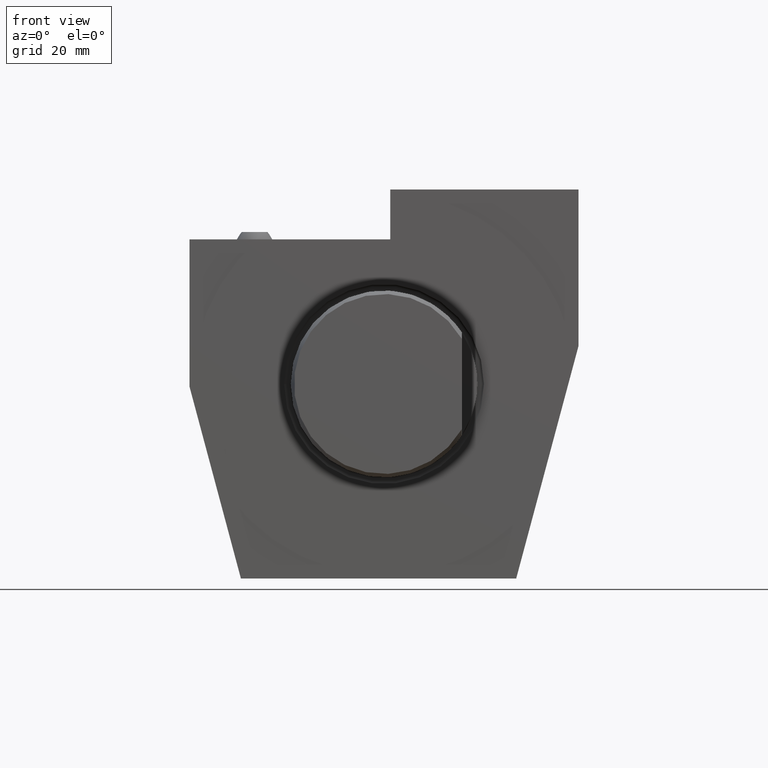
[diagram: clean part render]
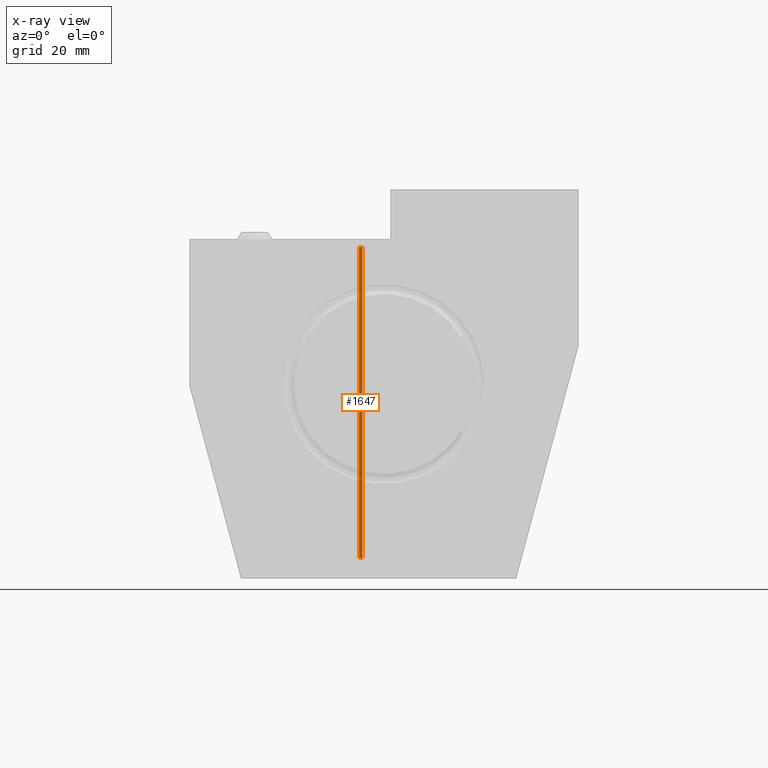
[diagram: x-ray — body ghosted, one internal face saturated and labeled with its STEP entity id]
A machine part, front view, then the same camera in x-ray: the body is ghosted and one INTERNAL B-rep face — a face not visible from any outside direction — is saturated and labeled: STEP entity #1647.
In plain terms, the highlighted planar face has unit normal (0.7071, 0.7071, -0).
Its self-contained STEP definition (entity closure, byte-faithful):
#1282 = VECTOR ( 'NONE', #7830, 1000.000000000000000 ) ;
#1372 = AXIS2_PLACEMENT_3D ( 'NONE', #7530, #2742, #9182 ) ;
#1597 = CARTESIAN_POINT ( 'NONE',  ( -8.000000000000003553, 36.99999999999999289, -6.000000000000012434 ) ) ;
#1647 = ADVANCED_FACE ( 'Defeature completata1_22', ( #5789 ), #12064, .F. ) ;
#1803 = EDGE_CURVE ( 'NONE', #5805, #5525, #19033, .T. ) ;
#2255 = CARTESIAN_POINT ( 'NONE',  ( -8.000000000000003553, 36.99999999999999289, 43.99999999999999289 ) ) ;
#2742 = DIRECTION ( 'NONE',  ( 0.7071067811865473507, 0.7071067811865476838, -1.095339363532939928E-32 ) ) ;
#4067 = ORIENTED_EDGE ( 'NONE', *, *, #1803, .F. ) ;
#4099 = CARTESIAN_POINT ( 'NONE',  ( -7.000000000000002665, 35.99999999999999289, -56.00000000000001421 ) ) ;
#4436 = LINE ( 'NONE', #16994, #6227 ) ;
#5011 = CARTESIAN_POINT ( 'NONE',  ( -7.000000000000002665, 35.99999999999999289, 44.99999999999999289 ) ) ;
#5525 = VERTEX_POINT ( 'NONE', #2255 ) ;
#5789 = FACE_OUTER_BOUND ( 'NONE', #6860, .T. ) ;
#5805 = VERTEX_POINT ( 'NONE', #13714 ) ;
#6227 = VECTOR ( 'NONE', #13830, 1000.000000000000000 ) ;
#6604 = ORIENTED_EDGE ( 'NONE', *, *, #8440, .T. ) ;
#6860 = EDGE_LOOP ( 'NONE', ( #6604, #4067, #15287, #17736 ) ) ;
#7158 = VECTOR ( 'NONE', #7539, 1000.000000000000000 ) ;
#7530 = CARTESIAN_POINT ( 'NONE',  ( -7.000000000000002665, 35.99999999999999289, 44.99999999999999289 ) ) ;
#7539 = DIRECTION ( 'NONE',  ( -0.7071067811865476838, 0.7071067811865474617, 0.000000000000000000 ) ) ;
#7830 = DIRECTION ( 'NONE',  ( 1.549043783309398025E-32, 0.000000000000000000, 1.000000000000000000 ) ) ;
#8440 = EDGE_CURVE ( 'NONE', #20065, #5525, #19788, .T. ) ;
#9182 = DIRECTION ( 'NONE',  ( -1.549043783309398025E-32, 0.000000000000000000, -1.000000000000000000 ) ) ;
#9367 = CARTESIAN_POINT ( 'NONE',  ( -7.000000000000002665, 35.99999999999999289, 43.99999999999999289 ) ) ;
#11118 = VECTOR ( 'NONE', #17557, 1000.000000000000000 ) ;
#11186 = LINE ( 'NONE', #5011, #11118 ) ;
#12064 = PLANE ( 'NONE',  #1372 ) ;
#12814 = EDGE_CURVE ( 'NONE', #20065, #14909, #11186, .T. ) ;
#13714 = CARTESIAN_POINT ( 'NONE',  ( -8.000000000000003553, 36.99999999999999289, -56.00000000000001421 ) ) ;
#13830 = DIRECTION ( 'NONE',  ( -0.7071067811865476838, 0.7071067811865474617, -0.000000000000000000 ) ) ;
#14909 = VERTEX_POINT ( 'NONE', #4099 ) ;
#15287 = ORIENTED_EDGE ( 'NONE', *, *, #16707, .F. ) ;
#15353 = CARTESIAN_POINT ( 'NONE',  ( -8.000000000000003553, 36.99999999999999289, 43.99999999999999289 ) ) ;
#16707 = EDGE_CURVE ( 'NONE', #14909, #5805, #4436, .T. ) ;
#16994 = CARTESIAN_POINT ( 'NONE',  ( -7.500000000000003553, 36.49999999999999289, -56.00000000000001421 ) ) ;
#17557 = DIRECTION ( 'NONE',  ( -1.549043783309398025E-32, 0.000000000000000000, -1.000000000000000000 ) ) ;
#17736 = ORIENTED_EDGE ( 'NONE', *, *, #12814, .F. ) ;
#19033 = LINE ( 'NONE', #1597, #1282 ) ;
#19788 = LINE ( 'NONE', #15353, #7158 ) ;
#20065 = VERTEX_POINT ( 'NONE', #9367 ) ;